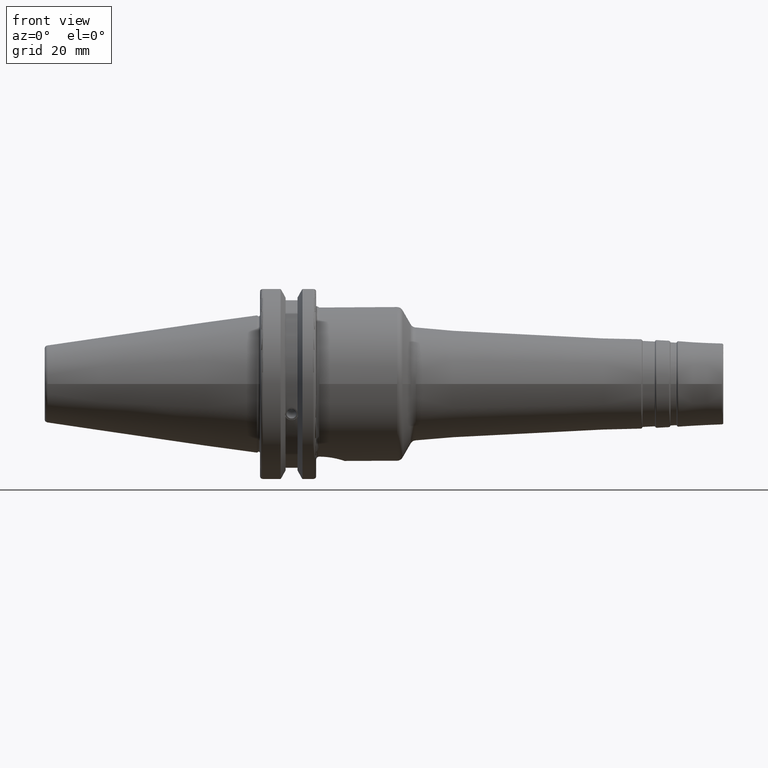
[diagram: clean part render]
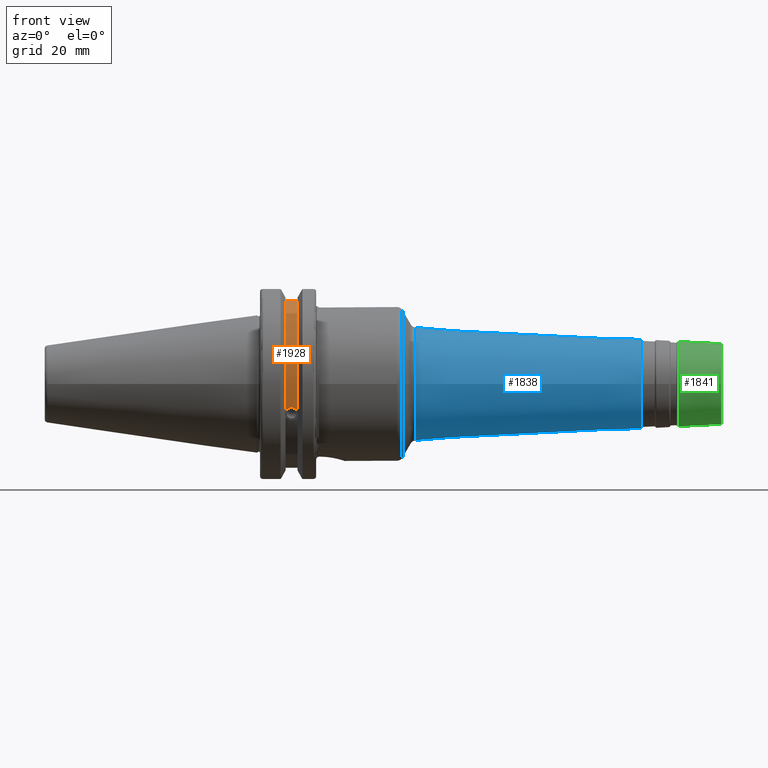
[diagram: same view with three faces highlighted in distinct colors, each labeled with its STEP entity id]
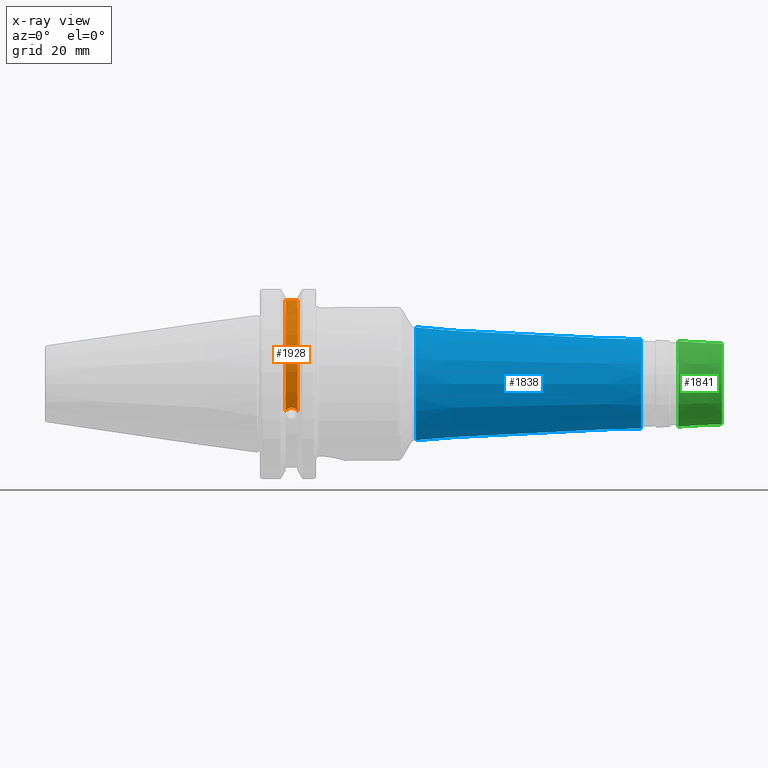
[diagram: x-ray of the same camera — body ghosted, the three highlighted faces saturated]
A machine part, front view with three faces highlighted in distinct colors.
The next image is the same camera in x-ray (body ghosted, the three faces saturated) — at least one of them is partly hidden behind the body in this view.
Their STEP definitions:

[orange] entity #1928 — the highlighted cylindrical surface (partial cylindrical patch) has radius 28.15 mm, axis along (1, 0, 0).
#151=B_SPLINE_CURVE_WITH_KNOTS('',3,(#3198,#3199,#3200,#3201,#3202,#3203,
#3204,#3205,#3206,#3207,#3208,#3209,#3210,#3211),.UNSPECIFIED.,.F.,.F.,
(4,2,2,2,2,2,4),(0.401639126382403,0.474814416953736,0.553950208498303,
0.63308600004287,0.712221791587437,0.791357583132004,0.864532873703337),
 .UNSPECIFIED.);
#276=FACE_OUTER_BOUND('',#396,.T.);
#396=EDGE_LOOP('',(#1766,#1767,#1768,#1769));
#480=LINE('',#3623,#578);
#578=VECTOR('',#2673,10.);
#722=CIRCLE('',#2195,28.15);
#724=CIRCLE('',#2199,28.15);
#813=VERTEX_POINT('',#3195);
#814=VERTEX_POINT('',#3197);
#896=VERTEX_POINT('',#3620);
#897=VERTEX_POINT('',#3622);
#1044=EDGE_CURVE('',#814,#813,#151,.T.);
#1157=EDGE_CURVE('',#897,#896,#480,.T.);
#1205=EDGE_CURVE('',#896,#814,#722,.T.);
#1207=EDGE_CURVE('',#897,#813,#724,.T.);
#1766=ORIENTED_EDGE('',*,*,#1044,.T.);
#1767=ORIENTED_EDGE('',*,*,#1207,.F.);
#1768=ORIENTED_EDGE('',*,*,#1157,.T.);
#1769=ORIENTED_EDGE('',*,*,#1205,.T.);
#1827=CYLINDRICAL_SURFACE('',#2198,28.15);
#1928=ADVANCED_FACE('',(#276),#1827,.T.);
#2195=AXIS2_PLACEMENT_3D('',#3768,#2778,#2779);
#2198=AXIS2_PLACEMENT_3D('',#3771,#2784,#2785);
#2199=AXIS2_PLACEMENT_3D('',#3772,#2786,#2787);
#2673=DIRECTION('',(-1.,0.,0.));
#2778=DIRECTION('center_axis',(1.,0.,0.));
#2779=DIRECTION('ref_axis',(0.,0.,-1.));
#2784=DIRECTION('center_axis',(1.,0.,0.));
#2785=DIRECTION('ref_axis',(0.,-0.887654187951484,0.46051063246378));
#2786=DIRECTION('center_axis',(1.,0.,0.));
#2787=DIRECTION('ref_axis',(0.,0.,-1.));
#3195=CARTESIAN_POINT('',(13.0491,-26.734714844398,-8.81348524641212));
#3197=CARTESIAN_POINT('',(9.2191,-26.734714844398,-8.81348524641212));
#3198=CARTESIAN_POINT('Ctrl Pts',(9.2191,-26.734714844398,-8.81348524641212));
#3199=CARTESIAN_POINT('Ctrl Pts',(9.32533057097183,-26.8086519721597,-8.58920529678291));
#3200=CARTESIAN_POINT('Ctrl Pts',(9.4768201377051,-26.8729987454904,-8.38416529997369));
#3201=CARTESIAN_POINT('Ctrl Pts',(9.83557062657411,-26.9778908791383,-8.04056861831091));
#3202=CARTESIAN_POINT('Ctrl Pts',(10.0716450112988,-27.0233016799732,-7.88512567185902));
#3203=CARTESIAN_POINT('Ctrl Pts',(10.5890125426388,-27.0826966800569,-7.6786444840004));
#3204=CARTESIAN_POINT('Ctrl Pts',(10.8703140281848,-27.0968804077294,-7.62768458768512));
#3205=CARTESIAN_POINT('Ctrl Pts',(11.3978859718152,-27.0968804077294,-7.62768458768512));
#3206=CARTESIAN_POINT('Ctrl Pts',(11.6791874573612,-27.0826966800569,-7.6786444840004));
#3207=CARTESIAN_POINT('Ctrl Pts',(12.1965549887012,-27.0233016799732,-7.88512567185902));
#3208=CARTESIAN_POINT('Ctrl Pts',(12.4326293734259,-26.9778908791383,-8.04056861831091));
#3209=CARTESIAN_POINT('Ctrl Pts',(12.7913798622949,-26.8729987454904,-8.38416529997369));
#3210=CARTESIAN_POINT('Ctrl Pts',(12.9428694290282,-26.8086519721597,-8.58920529678291));
#3211=CARTESIAN_POINT('Ctrl Pts',(13.0491,-26.734714844398,-8.81348524641212));
#3620=CARTESIAN_POINT('',(9.2191,-8.19,26.932255754021));
#3622=CARTESIAN_POINT('',(13.0491,-8.19,26.932255754021));
#3623=CARTESIAN_POINT('',(11.1341,-8.19,26.932255754021));
#3768=CARTESIAN_POINT('Origin',(9.2191,0.,0.));
#3771=CARTESIAN_POINT('Origin',(11.1341,0.,0.));
#3772=CARTESIAN_POINT('Origin',(13.0491,0.,0.));

[blue] entity #1838 — the highlighted conical surface has half-angle 3 deg.
#106=CONICAL_SURFACE('',#1987,16.3081634099065,0.0523598775598296);
#186=FACE_OUTER_BOUND('',#295,.T.);
#295=EDGE_LOOP('',(#1262,#1263,#1264,#1265,#1266,#1267));
#415=LINE('',#2965,#513);
#513=VECTOR('',#2280,16.3081634099065);
#616=CIRCLE('',#1981,18.1839457168278);
#617=CIRCLE('',#1982,18.1839457168278);
#621=CIRCLE('',#1988,14.387635362879);
#622=CIRCLE('',#1989,14.387635362879);
#747=VERTEX_POINT('',#2949);
#748=VERTEX_POINT('',#2951);
#751=VERTEX_POINT('',#2962);
#752=VERTEX_POINT('',#2963);
#947=EDGE_CURVE('',#747,#748,#616,.T.);
#948=EDGE_CURVE('',#748,#747,#617,.T.);
#953=EDGE_CURVE('',#751,#752,#621,.T.);
#954=EDGE_CURVE('',#751,#748,#415,.T.);
#955=EDGE_CURVE('',#752,#751,#622,.T.);
#1262=ORIENTED_EDGE('',*,*,#953,.F.);
#1263=ORIENTED_EDGE('',*,*,#954,.T.);
#1264=ORIENTED_EDGE('',*,*,#947,.F.);
#1265=ORIENTED_EDGE('',*,*,#948,.F.);
#1266=ORIENTED_EDGE('',*,*,#954,.F.);
#1267=ORIENTED_EDGE('',*,*,#955,.F.);
#1838=ADVANCED_FACE('',(#186),#106,.T.);
#1981=AXIS2_PLACEMENT_3D('',#2952,#2263,#2264);
#1982=AXIS2_PLACEMENT_3D('',#2953,#2265,#2266);
#1987=AXIS2_PLACEMENT_3D('',#2961,#2276,#2277);
#1988=AXIS2_PLACEMENT_3D('',#2964,#2278,#2279);
#1989=AXIS2_PLACEMENT_3D('',#2966,#2281,#2282);
#2263=DIRECTION('center_axis',(-1.,0.,0.));
#2264=DIRECTION('ref_axis',(0.,-1.,3.06161699786838E-17));
#2265=DIRECTION('center_axis',(-1.,0.,0.));
#2266=DIRECTION('ref_axis',(0.,-1.,3.06161699786838E-17));
#2276=DIRECTION('center_axis',(-1.,0.,0.));
#2277=DIRECTION('ref_axis',(0.,1.,0.));
#2278=DIRECTION('center_axis',(1.,0.,0.));
#2279=DIRECTION('ref_axis',(0.,-1.,3.06161699786838E-17));
#2280=DIRECTION('',(-0.998629534754574,-0.0523359562429436,-6.40930612932367E-18));
#2281=DIRECTION('center_axis',(1.,0.,0.));
#2282=DIRECTION('ref_axis',(0.,-1.,3.06161699786838E-17));
#2949=CARTESIAN_POINT('',(51.0844231954446,-2.22689109179824E-15,18.1839457168278));
#2951=CARTESIAN_POINT('',(51.0844231954446,-18.1839457168278,-2.22689109179824E-15));
#2952=CARTESIAN_POINT('Origin',(51.0844231954446,0.,-2.7836138647478E-15));
#2953=CARTESIAN_POINT('Origin',(51.0844231954446,0.,-2.7836138647478E-15));
#2961=CARTESIAN_POINT('Origin',(86.8764817902327,0.,0.));
#2962=CARTESIAN_POINT('',(123.522339968181,-14.387635362879,-1.7619771594449E-15));
#2963=CARTESIAN_POINT('',(123.522339968181,-1.7619771594449E-15,14.387635362879));
#2964=CARTESIAN_POINT('Origin',(123.522339968181,0.,-2.20247144930612E-15));
#2965=CARTESIAN_POINT('',(86.8764817902327,-16.3081634099065,-1.9971740119914E-15));
#2966=CARTESIAN_POINT('Origin',(123.522339968181,0.,-2.20247144930612E-15));

[green] entity #1841 — the highlighted conical surface has half-angle 3 deg.
#107=CONICAL_SURFACE('',#1997,13.3848185972057,0.0523598775598296);
#189=FACE_OUTER_BOUND('',#298,.T.);
#298=EDGE_LOOP('',(#1279,#1280,#1281,#1282,#1283,#1284));
#416=LINE('',#2979,#514);
#514=VECTOR('',#2299,13.3848185972057);
#626=CIRCLE('',#1995,13.0248324840198);
#627=CIRCLE('',#1996,13.0248324840198);
#628=CIRCLE('',#1998,13.7575507230413);
#629=CIRCLE('',#1999,13.7575507230413);
#754=VERTEX_POINT('',#2972);
#755=VERTEX_POINT('',#2974);
#756=VERTEX_POINT('',#2978);
#757=VERTEX_POINT('',#2980);
#959=EDGE_CURVE('',#754,#755,#626,.T.);
#960=EDGE_CURVE('',#755,#754,#627,.T.);
#961=EDGE_CURVE('',#755,#756,#416,.T.);
#962=EDGE_CURVE('',#757,#756,#628,.T.);
#963=EDGE_CURVE('',#756,#757,#629,.T.);
#1279=ORIENTED_EDGE('',*,*,#960,.F.);
#1280=ORIENTED_EDGE('',*,*,#961,.T.);
#1281=ORIENTED_EDGE('',*,*,#962,.F.);
#1282=ORIENTED_EDGE('',*,*,#963,.F.);
#1283=ORIENTED_EDGE('',*,*,#961,.F.);
#1284=ORIENTED_EDGE('',*,*,#959,.F.);
#1841=ADVANCED_FACE('',(#189),#107,.T.);
#1995=AXIS2_PLACEMENT_3D('',#2975,#2293,#2294);
#1996=AXIS2_PLACEMENT_3D('',#2976,#2295,#2296);
#1997=AXIS2_PLACEMENT_3D('',#2977,#2297,#2298);
#1998=AXIS2_PLACEMENT_3D('',#2981,#2300,#2301);
#1999=AXIS2_PLACEMENT_3D('',#2982,#2302,#2303);
#2293=DIRECTION('center_axis',(1.,0.,0.));
#2294=DIRECTION('ref_axis',(0.,-1.,3.06161699786838E-17));
#2295=DIRECTION('center_axis',(1.,0.,0.));
#2296=DIRECTION('ref_axis',(0.,-1.,3.06161699786838E-17));
#2297=DIRECTION('center_axis',(-1.,0.,0.));
#2298=DIRECTION('ref_axis',(0.,1.,0.));
#2299=DIRECTION('',(-0.998629534754574,-0.0523359562429436,-6.40930612932368E-18));
#2300=DIRECTION('center_axis',(-1.,0.,0.));
#2301=DIRECTION('ref_axis',(0.,-1.,3.06161699786838E-17));
#2302=DIRECTION('center_axis',(-1.,0.,0.));
#2303=DIRECTION('ref_axis',(0.,-1.,3.06161699786838E-17));
#2972=CARTESIAN_POINT('',(149.526167978121,-1.59508194109854E-15,13.0248324840198));
#2974=CARTESIAN_POINT('',(149.526167978121,-13.0248324840198,-1.59508194109854E-15));
#2975=CARTESIAN_POINT('Origin',(149.526167978121,0.,-1.99385242637317E-15));
#2976=CARTESIAN_POINT('Origin',(149.526167978121,0.,-1.99385242637317E-15));
#2977=CARTESIAN_POINT('Origin',(142.657223746739,0.,0.));
#2978=CARTESIAN_POINT('',(135.545071105762,-13.7575507230413,-1.68481404570799E-15));
#2979=CARTESIAN_POINT('',(142.657223746739,-13.3848185972057,-1.63916752522359E-15));
#2980=CARTESIAN_POINT('',(135.545071105762,-1.68481404570799E-15,13.7575507230413));
#2981=CARTESIAN_POINT('Origin',(135.545071105762,0.,-2.10601755713498E-15));
#2982=CARTESIAN_POINT('Origin',(135.545071105762,0.,-2.10601755713498E-15));